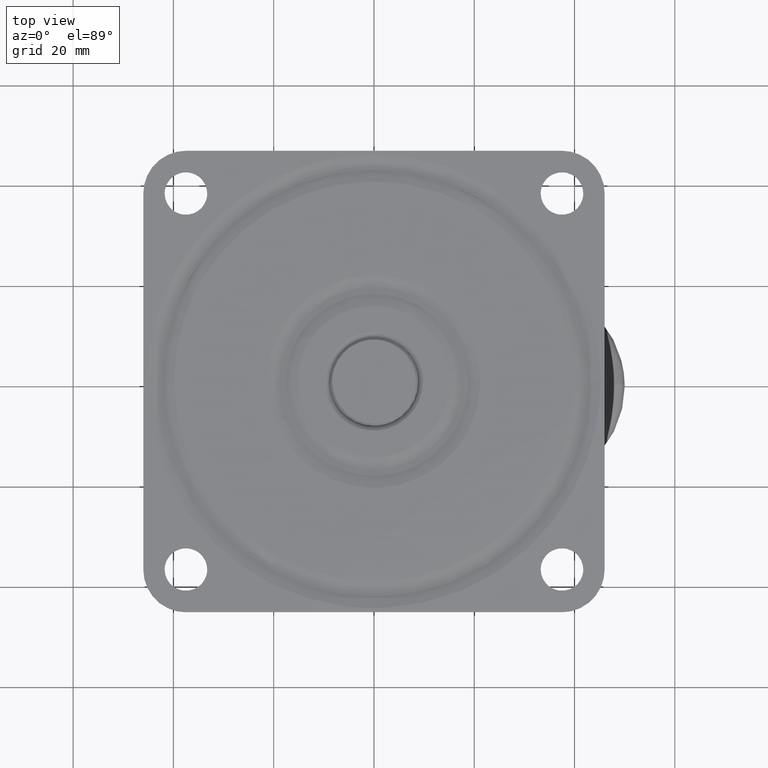
[diagram: clean part render]
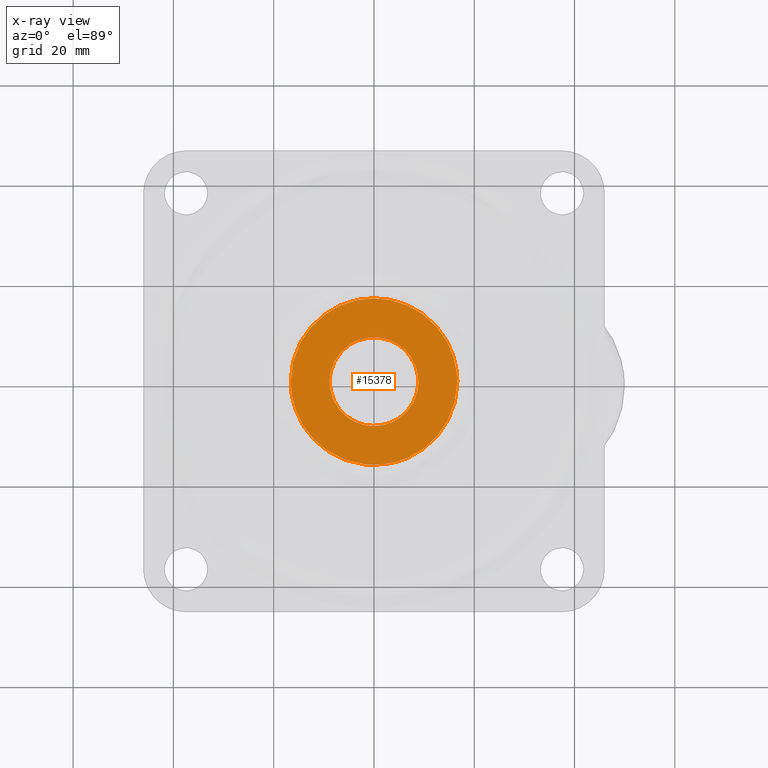
[diagram: x-ray — body ghosted, one internal face saturated and labeled with its STEP entity id]
A machine part, top view, then the same camera in x-ray: the body is ghosted and one INTERNAL B-rep face — a face not visible from any outside direction — is saturated and labeled: STEP entity #15378.
In plain terms, the highlighted face is a freeform B-spline surface patch.
Its self-contained STEP definition (entity closure, byte-faithful):
#12675=CARTESIAN_POINT('',(-5.065934579742554,7.256638811025058,-4.315556000000001));
#12676=VERTEX_POINT('',#12675);
#12677=CARTESIAN_POINT('',(-8.850000000000000,0.0,-4.315556000000000));
#12678=VERTEX_POINT('',#12677);
#12679=CARTESIAN_POINT('',(-5.065934579742554,7.256638811025057,-4.315556000000001));
#12680=CARTESIAN_POINT('',(-8.850000000000000,4.614943618022114,-4.315556000000000));
#12681=CARTESIAN_POINT('',(-8.850000000000000,0.0,-4.315556000000000));
#12689=(BOUNDED_CURVE()B_SPLINE_CURVE(2,(#12679,#12680,#12681),.UNSPECIFIED.,.F.,.U.)B_SPLINE_CURVE_WITH_KNOTS((3,3),(0.348383774439179,0.500000000000000),.UNSPECIFIED.)CURVE()GEOMETRIC_REPRESENTATION_ITEM()RATIONAL_B_SPLINE_CURVE((0.860193148301806,0.822370542684579,1.0))REPRESENTATION_ITEM(''));
#12690=EDGE_CURVE('',#12676,#12678,#12689,.T.);
#12692=CARTESIAN_POINT('',(8.850000000000000,0.0,-4.315556000000000));
#12693=VERTEX_POINT('',#12692);
#12694=CARTESIAN_POINT('',(-8.850000000000000,0.0,-4.315556000000000));
#12695=CARTESIAN_POINT('',(-8.850000000000000,-8.850000000000000,-4.315556000000000));
#12696=CARTESIAN_POINT('',(0.0,-8.850000000000000,-4.315556000000000));
#12697=CARTESIAN_POINT('',(8.850000000000000,-8.850000000000000,-4.315556000000000));
#12698=CARTESIAN_POINT('',(8.850000000000000,0.0,-4.315556000000000));
#12706=(BOUNDED_CURVE()B_SPLINE_CURVE(2,(#12694,#12695,#12696,#12697,#12698),.UNSPECIFIED.,.F.,.U.)B_SPLINE_CURVE_WITH_KNOTS((3,2,3),(0.500000000000000,0.750000000000000,1.0),.UNSPECIFIED.)CURVE()GEOMETRIC_REPRESENTATION_ITEM()RATIONAL_B_SPLINE_CURVE((1.0,0.707106781186547,1.0,0.707106781186547,1.0))REPRESENTATION_ITEM(''));
#12707=EDGE_CURVE('',#12678,#12693,#12706,.T.);
#12709=CARTESIAN_POINT('',(2.961763929095159,8.339691506775687,-4.315556000000685));
#12710=VERTEX_POINT('',#12709);
#12711=CARTESIAN_POINT('',(8.850000000000000,0.0,-4.315556000000000));
#12712=CARTESIAN_POINT('',(8.850000000000000,6.248539191780362,-4.315556000000000));
#12713=CARTESIAN_POINT('',(2.961763929095159,8.339691506775687,-4.315556000000685));
#12721=(BOUNDED_CURVE()B_SPLINE_CURVE(2,(#12711,#12712,#12713),.UNSPECIFIED.,.F.,.U.)B_SPLINE_CURVE_WITH_KNOTS((3,3),(0.0,0.193141096100624),.UNSPECIFIED.)CURVE()GEOMETRIC_REPRESENTATION_ITEM()RATIONAL_B_SPLINE_CURVE((1.0,0.773721130711720,0.897072252133425))REPRESENTATION_ITEM(''));
#12722=EDGE_CURVE('',#12693,#12710,#12721,.T.);
#12822=CARTESIAN_POINT('',(2.961763929095159,8.339691506775687,-4.315556000000685));
#12823=CARTESIAN_POINT('',(1.524844745594823,8.850000000000000,-4.315556000000000));
#12824=CARTESIAN_POINT('',(0.0,8.850000000000000,-4.315556000000000));
#12825=CARTESIAN_POINT('',(-2.783542957457243,8.850000000000000,-4.315556000000000));
#12826=CARTESIAN_POINT('',(-5.065934579742554,7.256638811025057,-4.315556000000001));
#12834=(BOUNDED_CURVE()B_SPLINE_CURVE(2,(#12822,#12823,#12824,#12825,#12826),.UNSPECIFIED.,.F.,.U.)B_SPLINE_CURVE_WITH_KNOTS((3,2,3),(0.193141096100624,0.250000000000000,0.348383774439179),.UNSPECIFIED.)CURVE()GEOMETRIC_REPRESENTATION_ITEM()RATIONAL_B_SPLINE_CURVE((0.897072252133425,0.933385650474828,1.0,0.884736238501968,0.860193148301806))REPRESENTATION_ITEM(''));
#12835=EDGE_CURVE('',#12710,#12676,#12834,.T.);
#14164=CARTESIAN_POINT('',(2.082125291514053,-16.481718796732562,-4.315555959919690));
#14165=VERTEX_POINT('',#14164);
#14166=CARTESIAN_POINT('',(-16.612714981818499,0.0,-4.315556000000000));
#14167=VERTEX_POINT('',#14166);
#14168=CARTESIAN_POINT('',(2.082125291514052,-16.481718796732565,-4.315555959919690));
#14169=CARTESIAN_POINT('',(1.045183435459339,-16.612714981818495,-4.315555999999999));
#14170=CARTESIAN_POINT('',(0.0,-16.612714981818499,-4.315556000000000));
#14171=CARTESIAN_POINT('',(-16.612714981818492,-16.612714981818492,-4.315556000000001));
#14172=CARTESIAN_POINT('',(-16.612714981818499,0.0,-4.315556000000000));
#14180=(BOUNDED_CURVE()B_SPLINE_CURVE(2,(#14168,#14169,#14170,#14171,#14172),.UNSPECIFIED.,.F.,.U.)B_SPLINE_CURVE_WITH_KNOTS((3,2,3),(0.728321256477533,0.750000000000000,1.0),.UNSPECIFIED.)CURVE()GEOMETRIC_REPRESENTATION_ITEM()RATIONAL_B_SPLINE_CURVE((0.953608357584161,0.974601772119494,1.0,0.707106781186548,1.0))REPRESENTATION_ITEM(''));
#14181=EDGE_CURVE('',#14165,#14167,#14180,.T.);
#14183=CARTESIAN_POINT('',(16.481718796731421,2.082125291497407,-4.315555959916900));
#14184=VERTEX_POINT('',#14183);
#14185=CARTESIAN_POINT('',(-16.612714981818499,0.0,-4.315556000000000));
#14186=CARTESIAN_POINT('',(-16.612714981818492,16.612714981818492,-4.315556000000001));
#14187=CARTESIAN_POINT('',(0.0,16.612714981818499,-4.315556000000000));
#14188=CARTESIAN_POINT('',(14.646078397279355,16.612714981818499,-4.315555999999999));
#14189=CARTESIAN_POINT('',(16.481718796731425,2.082125291497407,-4.315555959916900));
#14197=(BOUNDED_CURVE()B_SPLINE_CURVE(2,(#14185,#14186,#14187,#14188,#14189),.UNSPECIFIED.,.F.,.U.)B_SPLINE_CURVE_WITH_KNOTS((3,2,3),(0.0,0.250000000000000,0.478321256477865),.UNSPECIFIED.)CURVE()GEOMETRIC_REPRESENTATION_ITEM()RATIONAL_B_SPLINE_CURVE((1.0,0.707106781186548,1.0,0.732505009066665,0.953608357584804))REPRESENTATION_ITEM(''));
#14198=EDGE_CURVE('',#14167,#14184,#14197,.T.);
#14250=CARTESIAN_POINT('',(16.612714981818499,0.0,-4.315556000000000));
#14251=VERTEX_POINT('',#14250);
#14252=CARTESIAN_POINT('',(16.612714981818499,0.0,-4.315556000000000));
#14253=CARTESIAN_POINT('',(16.612714981818499,-14.646078397250244,-4.315556000000000));
#14254=CARTESIAN_POINT('',(2.082125291514053,-16.481718796732558,-4.315555959919690));
#14262=(BOUNDED_CURVE()B_SPLINE_CURVE(2,(#14252,#14253,#14254),.UNSPECIFIED.,.F.,.U.)B_SPLINE_CURVE_WITH_KNOTS((3,3),(0.500000000000000,0.728321256477533),.UNSPECIFIED.)CURVE()GEOMETRIC_REPRESENTATION_ITEM()RATIONAL_B_SPLINE_CURVE((1.0,0.732505009067054,0.953608357584160))REPRESENTATION_ITEM(''));
#14263=EDGE_CURVE('',#14251,#14165,#14262,.T.);
#14269=CARTESIAN_POINT('',(16.481718796731425,2.082125291497407,-4.315555959916900));
#14270=CARTESIAN_POINT('',(16.612714981818499,1.045183435442904,-4.315556000000000));
#14271=CARTESIAN_POINT('',(16.612714981818499,0.0,-4.315556000000000));
#14279=(BOUNDED_CURVE()B_SPLINE_CURVE(2,(#14269,#14270,#14271),.UNSPECIFIED.,.F.,.U.)B_SPLINE_CURVE_WITH_KNOTS((3,3),(0.478321256477865,0.500000000000000),.UNSPECIFIED.)CURVE()GEOMETRIC_REPRESENTATION_ITEM()RATIONAL_B_SPLINE_CURVE((0.953608357584804,0.974601772119883,1.0))REPRESENTATION_ITEM(''));
#14280=EDGE_CURVE('',#14184,#14251,#14279,.T.);
#15361=CARTESIAN_POINT('',(-18.272325144104840,-18.270359471333741,-4.315556000000000));
#15362=CARTESIAN_POINT('',(18.272326035280312,-18.270359471333741,-4.315556000000000));
#15363=CARTESIAN_POINT('',(-18.272325144104840,18.259866174429440,-4.315556000000000));
#15364=CARTESIAN_POINT('',(18.272326035280312,18.259866174429440,-4.315556000000000));
#15365=B_SPLINE_SURFACE_WITH_KNOTS('',1,1,((#15361,#15363),(#15362,#15364)),.UNSPECIFIED.,.F.,.F.,.U.,(2,2),(2,2),(0.0,36.544651179385149),(0.0,36.530225645763181),.UNSPECIFIED.);
#15366=ORIENTED_EDGE('',*,*,#14263,.F.);
#15367=ORIENTED_EDGE('',*,*,#14280,.F.);
#15368=ORIENTED_EDGE('',*,*,#14198,.F.);
#15369=ORIENTED_EDGE('',*,*,#14181,.F.);
#15370=EDGE_LOOP('',(#15366,#15367,#15368,#15369));
#15371=FACE_OUTER_BOUND('',#15370,.T.);
#15372=ORIENTED_EDGE('',*,*,#12707,.F.);
#15373=ORIENTED_EDGE('',*,*,#12690,.F.);
#15374=ORIENTED_EDGE('',*,*,#12835,.F.);
#15375=ORIENTED_EDGE('',*,*,#12722,.F.);
#15376=EDGE_LOOP('',(#15372,#15373,#15374,#15375));
#15377=FACE_BOUND('',#15376,.T.);
#15378=ADVANCED_FACE('',(#15371,#15377),#15365,.T.);